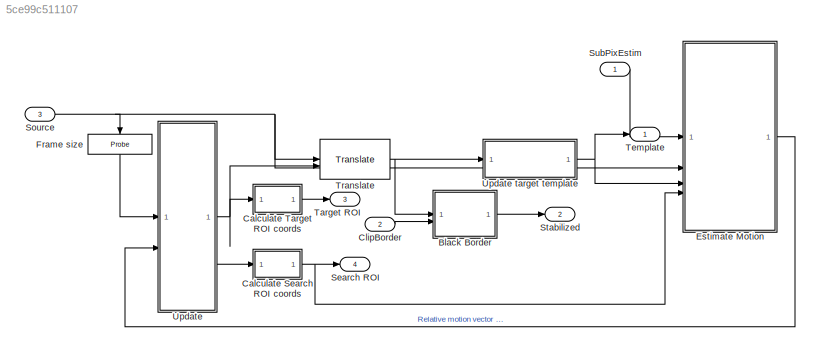
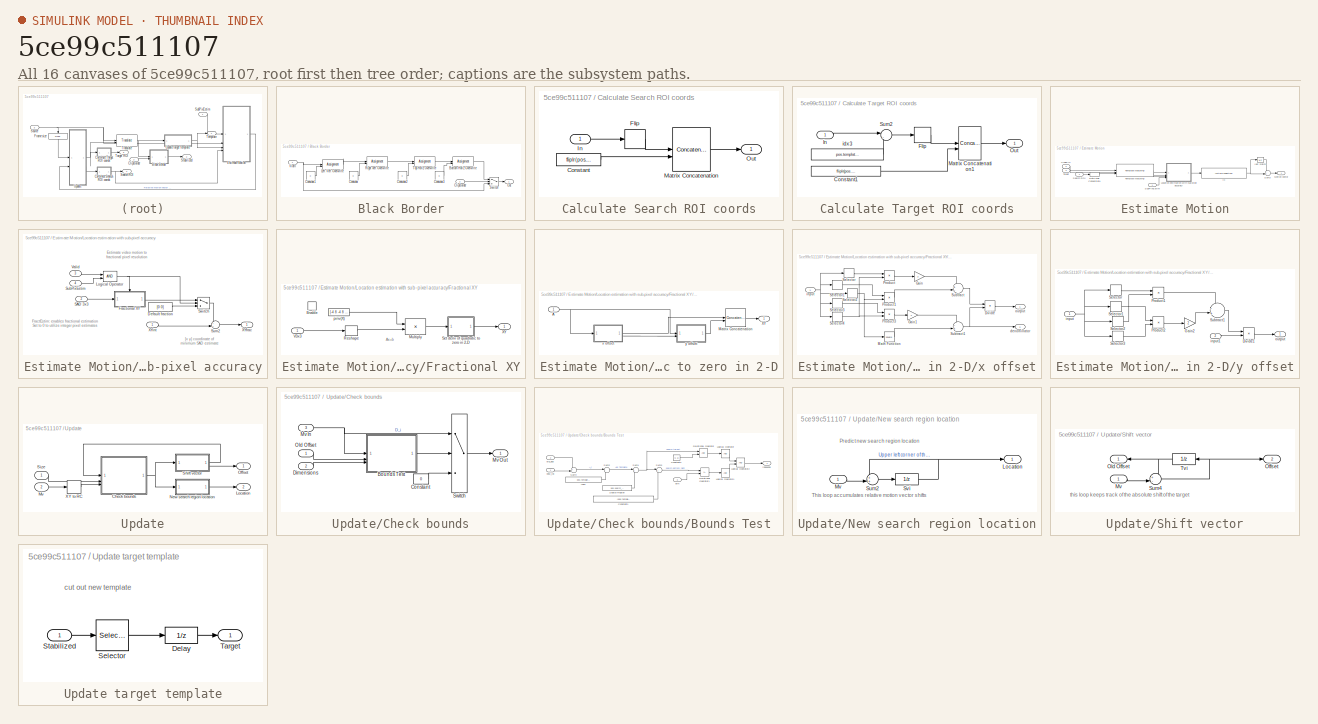
[diagram: thumbnail index - all 16 canvases of the model, root first then tree order]
MODEL slx_5ce99c511107
KIND model
CONFIG AbsTol = auto
CONFIG EnableMultiTasking = on
CONFIG FixedStep = auto
CONFIG MaxStep = auto
CONFIG MinStep = auto
CONFIG PreLoadFcn = template_orig = fliplr([109 100]);\ntemplate_size = fliplr([18 22]);\nsearch_border = fliplr([10 15]);\npos.template_orig = fliplr(template_orig);\npos.template_size = template_size;\npos.search_border = search_border;\npos.template_center = floor((template_size-1)/2);\npos.template_center_pos = pos.template_orig + ...\n    pos.template_center - 1;
CONFIG RelTol = 1e-3
CONFIG SampleTimeConstraint = Unconstrained
CONFIG SolverName = FixedStepDiscrete
CONFIG StartTime = 0.0
CONFIG StopTime = 10
BLOCK [SubSystem] Black Border
BLOCK [Assignment] Black Border/Bottom Horiz Overwrite
  IndexOptions = Index vector (dialog),Assign all
  Indices = [320-(pos.search_border(2)+4):320],[320-(pos.search_border(2)+4):320]
  NumberOfDimensions = 2
  OutputSizes = 1,1
BLOCK [Inport] Black Border/ClipBorder
  Port = 2
BLOCK [Constant] Black Border/Constant
  OutDataTypeStr = uint8
  Value = 0
BLOCK [Constant] Black Border/Constant1
  OutDataTypeStr = uint8
  Value = 0
BLOCK [Constant] Black Border/Constant2
  OutDataTypeStr = uint8
  Value = 0
BLOCK [Constant] Black Border/Constant3
  OutDataTypeStr = uint8
  Value = 0
BLOCK [Assignment] Black Border/Left Vert Overwrite
  IndexOptions = Assign all,Index vector (dialog)
  Indices = 1:end,1:(pos.search_border(2)+4)
  NumberOfDimensions = 2
  OutputSizes = 1,1
BLOCK [Outport] Black Border/Out
BLOCK [Assignment] Black Border/Right vert Overwrite
  IndexOptions = Assign all,Index vector (dialog)
  Indices = 1:end,[240-(pos.search_border(2)+4):240]
  NumberOfDimensions = 2
  OutputSizes = 1,1
BLOCK [Switch] Black Border/Switch
  Criteria = u2 ~= 0
  InputSameDT = off
  SaturateOnIntegerOverflow = off
  ZeroCross = off
BLOCK [Assignment] Black Border/Top Horiz Overwrite
  IndexOptions = Index vector (dialog),Assign all
  Indices = [1:pos.search_border(1)+4],[320-(pos.search_border(2)+4):320]
  NumberOfDimensions = 2
  OutputSizes = 1,1
BLOCK [Inport] Black Border/VidIn
BLOCK [SubSystem] Calculate Search ROI coords
BLOCK [Constant] Calculate Search ROI coords/Constant
  OutDataTypeStr = fixdt(1,16,6)
  Value = fliplr(pos.template_size + 2*pos.search_border)
  VectorParams1D = off
BLOCK [Selector] Calculate Search ROI coords/Flip
  IndexOptions = Index vector (dialog),Index vector (dialog)
  Indices = 1,[2 1]
  NumberOfDimensions = 2
  OutputSizes = 1,1
BLOCK [Inport] Calculate Search ROI coords/In
  NameLocation = top
BLOCK [Concatenate] Calculate Search ROI coords/Matrix Concatenation
  ConcatenateDimension = 2
  Mode = Multidimensional array
BLOCK [Outport] Calculate Search ROI coords/Out
BLOCK [SubSystem] Calculate Target ROI coords
BLOCK [Constant] Calculate Target ROI coords/Constant1
  OutDataTypeStr = Inherit: Inherit via back propagation
  Value = fliplr(pos.template_size )
  VectorParams1D = off
BLOCK [Selector] Calculate Target ROI coords/Flip
  IndexOptions = Index vector (dialog),Index vector (dialog)
  Indices = 1,[2 1]
  NumberOfDimensions = 2
  OutputSizes = 1,1
BLOCK [Inport] Calculate Target ROI coords/In
BLOCK [Concatenate] Calculate Target ROI coords/Matrix Concatenation1
  ConcatenateDimension = 2
  Mode = Multidimensional array
BLOCK [Outport] Calculate Target ROI coords/Out
BLOCK [Sum] Calculate Target ROI coords/Sum2
  Inputs = |-+
BLOCK [Constant] Calculate Target ROI coords/idx3
  OutDataTypeStr = fixdt(1,16,6)
  Value = pos.template_orig
  VectorParams1D = off
BLOCK [Inport] ClipBorder
  OutDataTypeStr = boolean
  Port = 2
  PortDimensions = [1 1]
  SampleTime = [0.033333299999999996,0]
  SamplingMode = Sample based
  SignalType = real
BLOCK [SubSystem] Estimate Motion
BLOCK [DataTypeConversion] Estimate Motion/Data Type Conversion1
  OutDataTypeStr = int32
  SaturateOnIntegerOverflow = off
BLOCK [InitialCondition] Estimate Motion/IC
  Value = fliplr(pos.template_center_pos)
BLOCK [SubSystem] Estimate Motion/Location estimation with sub-pixel accuracy
BLOCK [Constant] Estimate Motion/Location estimation with sub-pixel accuracy/Default fraction
  OutDataTypeStr = fixdt(1,8,6)
  Value = [0 0]
  VectorParams1D = off
BLOCK [SubSystem] Estimate Motion/Location estimation with sub-pixel accuracy/Fractional XY
  TreatAsAtomicUnit = on
BLOCK [EnablePort] Estimate Motion/Location estimation with sub-pixel accuracy/Fractional XY/Enable
  PropagateVarSize = During execution
  StatesWhenEnabling = reset
  ZeroCross = off
BLOCK [Product] Estimate Motion/Location estimation with sub-pixel accuracy/Fractional XY/Multiply
  Inputs = **
  Multiplication = Matrix(*)
  OutDataTypeStr = fixdt(1,16,-1)
BLOCK [Reshape] Estimate Motion/Location estimation with sub-pixel accuracy/Fractional XY/Reshape
  OutputDimensionality = Column vector (2-D)
BLOCK [SubSystem] Estimate Motion/Location estimation with sub-pixel accuracy/Fractional XY/Set deriv of quadratic to zero in 2-D
BLOCK [Inport] Estimate Motion/Location estimation with sub-pixel accuracy/Fractional XY/Set deriv of quadratic to zero in 2-D/A
BLOCK [Concatenate] Estimate Motion/Location estimation with sub-pixel accuracy/Fractional XY/Set deriv of quadratic to zero in 2-D/Matrix Concatenation
  ConcatenateDimension = 2
  Mode = Multidimensional array
BLOCK [Outport] Estimate Motion/Location estimation with sub-pixel accuracy/Fractional XY/Set deriv of quadratic to zero in 2-D/XY
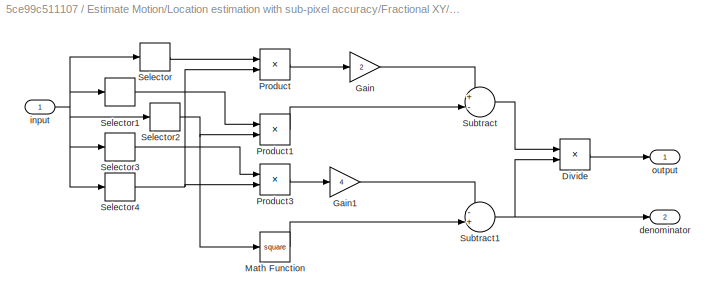
BLOCK [SubSystem] Estimate Motion/Location estimation with sub-pixel accuracy/Fractional XY/Set deriv of quadratic to zero in 2-D/x offset
BLOCK [Product] Estimate Motion/Location estimation with sub-pixel accuracy/Fractional XY/Set deriv of quadratic to zero in 2-D/x offset/Divide
  Inputs = */
  OutDataTypeStr = fixdt(1,8,6)
  SaturateOnIntegerOverflow = on
BLOCK [Gain] Estimate Motion/Location estimation with sub-pixel accuracy/Fractional XY/Set deriv of quadratic to zero in 2-D/x offset/Gain
  Gain = 2
  OutDataTypeStr = Inherit: Same as input
BLOCK [Gain] Estimate Motion/Location estimation with sub-pixel accuracy/Fractional XY/Set deriv of quadratic to zero in 2-D/x offset/Gain1
  Gain = 4
  OutDataTypeStr = Inherit: Same as input
BLOCK [Math] Estimate Motion/Location estimation with sub-pixel accuracy/Fractional XY/Set deriv of quadratic to zero in 2-D/x offset/Math Function
  Operator = square
  OutDataTypeStr = Inherit: Inherit via internal rule
  SignedPower = on
BLOCK [Product] Estimate Motion/Location estimation with sub-pixel accuracy/Fractional XY/Set deriv of quadratic to zero in 2-D/x offset/Product
  RndMeth = Zero
BLOCK [Product] Estimate Motion/Location estimation with sub-pixel accuracy/Fractional XY/Set deriv of quadratic to zero in 2-D/x offset/Product1
  RndMeth = Zero
BLOCK [Product] Estimate Motion/Location estimation with sub-pixel accuracy/Fractional XY/Set deriv of quadratic to zero in 2-D/x offset/Product3
  RndMeth = Zero
BLOCK [Selector] Estimate Motion/Location estimation with sub-pixel accuracy/Fractional XY/Set deriv of quadratic to zero in 2-D/x offset/Selector
  IndexMode = Zero-based
  IndexOptions = Index vector (dialog)
  Indices = (1)
  OutputSizes = 1
BLOCK [Selector] Estimate Motion/Location estimation with sub-pixel accuracy/Fractional XY/Set deriv of quadratic to zero in 2-D/x offset/Selector1
  IndexMode = Zero-based
  IndexOptions = Index vector (dialog)
  Indices = (2)
  OutputSizes = 1
BLOCK [Selector] Estimate Motion/Location estimation with sub-pixel accuracy/Fractional XY/Set deriv of quadratic to zero in 2-D/x offset/Selector2
  IndexMode = Zero-based
  IndexOptions = Index vector (dialog)
  Indices = (3)
  OutputSizes = 1
BLOCK [Selector] Estimate Motion/Location estimation with sub-pixel accuracy/Fractional XY/Set deriv of quadratic to zero in 2-D/x offset/Selector3
  IndexMode = Zero-based
  IndexOptions = Index vector (dialog)
  Indices = (4)
  OutputSizes = 1
BLOCK [Selector] Estimate Motion/Location estimation with sub-pixel accuracy/Fractional XY/Set deriv of quadratic to zero in 2-D/x offset/Selector4
  IndexMode = Zero-based
  IndexOptions = Index vector (dialog)
  Indices = (5)
  OutputSizes = 1
BLOCK [Sum] Estimate Motion/Location estimation with sub-pixel accuracy/Fractional XY/Set deriv of quadratic to zero in 2-D/x offset/Subtract
  Inputs = +-
  OutDataTypeStr = Inherit: Same as first input
BLOCK [Sum] Estimate Motion/Location estimation with sub-pixel accuracy/Fractional XY/Set deriv of quadratic to zero in 2-D/x offset/Subtract1
  Inputs = -+
  OutDataTypeStr = Inherit: Same as first input
BLOCK [Outport] Estimate Motion/Location estimation with sub-pixel accuracy/Fractional XY/Set deriv of quadratic to zero in 2-D/x offset/denominator
  Port = 2
BLOCK [Inport] Estimate Motion/Location estimation with sub-pixel accuracy/Fractional XY/Set deriv of quadratic to zero in 2-D/x offset/input
BLOCK [Outport] Estimate Motion/Location estimation with sub-pixel accuracy/Fractional XY/Set deriv of quadratic to zero in 2-D/x offset/output
BLOCK [SubSystem] Estimate Motion/Location estimation with sub-pixel accuracy/Fractional XY/Set deriv of quadratic to zero in 2-D/y offset
BLOCK [Product] Estimate Motion/Location estimation with sub-pixel accuracy/Fractional XY/Set deriv of quadratic to zero in 2-D/y offset/Divide1
  Inputs = */
  NameLocation = top
  OutDataTypeStr = fixdt(1,8,6)
  SaturateOnIntegerOverflow = on
BLOCK [Gain] Estimate Motion/Location estimation with sub-pixel accuracy/Fractional XY/Set deriv of quadratic to zero in 2-D/y offset/Gain2
  Gain = 2
  OutDataTypeStr = Inherit: Same as input
BLOCK [Product] Estimate Motion/Location estimation with sub-pixel accuracy/Fractional XY/Set deriv of quadratic to zero in 2-D/y offset/Product1
  RndMeth = Zero
BLOCK [Product] Estimate Motion/Location estimation with sub-pixel accuracy/Fractional XY/Set deriv of quadratic to zero in 2-D/y offset/Product2
  RndMeth = Zero
BLOCK [Selector] Estimate Motion/Location estimation with sub-pixel accuracy/Fractional XY/Set deriv of quadratic to zero in 2-D/y offset/Selector
  IndexMode = Zero-based
  IndexOptions = Index vector (dialog)
  Indices = (1)
  OutputSizes = 1
BLOCK [Selector] Estimate Motion/Location estimation with sub-pixel accuracy/Fractional XY/Set deriv of quadratic to zero in 2-D/y offset/Selector1
  IndexMode = Zero-based
  IndexOptions = Index vector (dialog)
  Indices = (2)
  OutputSizes = 1
BLOCK [Selector] Estimate Motion/Location estimation with sub-pixel accuracy/Fractional XY/Set deriv of quadratic to zero in 2-D/y offset/Selector2
  IndexMode = Zero-based
  IndexOptions = Index vector (dialog)
  Indices = (3)
  OutputSizes = 1
BLOCK [Selector] Estimate Motion/Location estimation with sub-pixel accuracy/Fractional XY/Set deriv of quadratic to zero in 2-D/y offset/Selector3
  IndexMode = Zero-based
  IndexOptions = Index vector (dialog)
  Indices = (4)
  OutputSizes = 1
BLOCK [Sum] Estimate Motion/Location estimation with sub-pixel accuracy/Fractional XY/Set deriv of quadratic to zero in 2-D/y offset/Subtract1
  Inputs = -+
BLOCK [Inport] Estimate Motion/Location estimation with sub-pixel accuracy/Fractional XY/Set deriv of quadratic to zero in 2-D/y offset/input
BLOCK [Inport] Estimate Motion/Location estimation with sub-pixel accuracy/Fractional XY/Set deriv of quadratic to zero in 2-D/y offset/input1
  Port = 2
BLOCK [Outport] Estimate Motion/Location estimation with sub-pixel accuracy/Fractional XY/Set deriv of quadratic to zero in 2-D/y offset/output
BLOCK [Inport] Estimate Motion/Location estimation with sub-pixel accuracy/Fractional XY/V3x3
BLOCK [Outport] Estimate Motion/Location estimation with sub-pixel accuracy/Fractional XY/XY
  NameLocation = top
BLOCK [Constant] Estimate Motion/Location estimation with sub-pixel accuracy/Fractional XY/pinv(X)
  NameLocation = top
  OutDataTypeStr = fixdt(1,16)
  Value = [-4 8 -4 8 20 8 -4 8 -4;-6 -6 -6 0 0 0 6 6 6;-6 0 6 -6 0 6 -6 0 6;9 0 -9 0 0 0 -9 0 9;6 6 6 -12 -12 -12 6 6 6;6 -12 6 6 -12 6 6 -12 6]/36
  VectorParams1D = off
BLOCK [Logic] Estimate Motion/Location estimation with sub-pixel accuracy/Logical Operator
  AllPortsSameDT = off
  OutDataTypeStr = boolean
BLOCK [Inport] Estimate Motion/Location estimation with sub-pixel accuracy/SAD 3x3
  Port = 2
BLOCK [Inport] Estimate Motion/Location estimation with sub-pixel accuracy/SubPixEstim
  Port = 4
BLOCK [Sum] Estimate Motion/Location estimation with sub-pixel accuracy/Sum2
  Inputs = ++|
  OutDataTypeStr = fixdt(1,16,6)
BLOCK [Switch] Estimate Motion/Location estimation with sub-pixel accuracy/Switch
  Criteria = u2 ~= 0
  InputSameDT = off
  SaturateOnIntegerOverflow = off
BLOCK [Inport] Estimate Motion/Location estimation with sub-pixel accuracy/Valid
  NameLocation = top
  Port = 3
BLOCK [Outport] Estimate Motion/Location estimation with sub-pixel accuracy/XYfrac
BLOCK [Inport] Estimate Motion/Location estimation with sub-pixel accuracy/XYint
BLOCK [Outport] Estimate Motion/Motion vector
BLOCK [Inport] Estimate Motion/Search ROI
  Port = 4
BLOCK [Inport] Estimate Motion/SubPixEstim
BLOCK [Sum] Estimate Motion/Sum3
  Inputs = -+|
  OutDataTypeStr = fixdt(1,16,6)
BLOCK [Inport] Estimate Motion/Target
  Port = 3
BLOCK [Reference] Estimate Motion/Template Matching  REF=visionanalysis/Template Matching
  SourceBlock = visionanalysis/Template Matching
  SourceType = Template Matching
BLOCK [Inport] Estimate Motion/Video In
  NameLocation = top
  Port = 2
BLOCK [UnitDelay] Estimate Motion/last match
  HasFrameUpgradeWarning = on
  InitialCondition = fliplr(pos.template_center_pos)
  NameLocation = top
  SampleTime = -1
BLOCK [Probe] Frame size
  NameLocation = left
  ProbeComplexSignal = off
  ProbeDimensionsDataType = int16
  ProbeSampleTime = off
  ProbeSignalDimensions = on
  ProbeWidth = off
BLOCK [Outport] Search ROI
  OutDataTypeStr = fixdt('sfix16_En6')
  Port = 4
  PortDimensions = [1 4]
  SampleTime = [0.033333299999999996,0]
  SamplingMode = Sample based
  SignalType = real
BLOCK [Inport] Source
  OutDataTypeStr = uint8
  Port = 3
  PortDimensions = [320 240]
  SampleTime = [0.033333299999999996,0]
  SamplingMode = Sample based
  SignalType = real
BLOCK [Outport] Stabilized
  OutDataTypeStr = uint8
  Port = 2
  PortDimensions = [320 240]
  SampleTime = [0.033333299999999996,0]
  SamplingMode = Sample based
  SignalType = real
BLOCK [Inport] SubPixEstim
  OutDataTypeStr = boolean
  PortDimensions = [1 1]
  SampleTime = [0.033333299999999996,0]
  SamplingMode = Sample based
  SignalType = real
BLOCK [Outport] Target ROI
  OutDataTypeStr = fixdt('sfix16_En6')
  Port = 3
  PortDimensions = [1 4]
  SampleTime = [0.033333299999999996,0]
  SamplingMode = Sample based
  SignalType = real
BLOCK [Outport] Template
  OutDataTypeStr = uint8
  PortDimensions = [22 18]
  SampleTime = [0.033333299999999996,0]
  SamplingMode = Sample based
  SignalType = real
BLOCK [Reference] Translate  REF=visiongeotforms/Translate
  NameLocation = top
  SourceBlock = visiongeotforms/Translate
  SourceType = Translate
BLOCK [SubSystem] Update
BLOCK [SubSystem] Update target template
BLOCK [UnitDelay] Update target template/Delay
  HasFrameUpgradeWarning = on
  SampleTime = -1
BLOCK [Selector] Update target template/Selector
  IndexOptions = Index vector (dialog),Index vector (dialog)
  Indices = pos.template_orig(1)-1 : pos.template_orig(1)+pos.template_size(1)-2,pos.template_orig(2)-1 : pos.template_orig(2)+pos.template_size(2)-2
  InputPortWidth = 3
  NumberOfDimensions = 2
  OutputSizes = 1,1
BLOCK [Inport] Update target template/Stabilized
BLOCK [Outport] Update target template/Target
BLOCK [SubSystem] Update/Check bounds
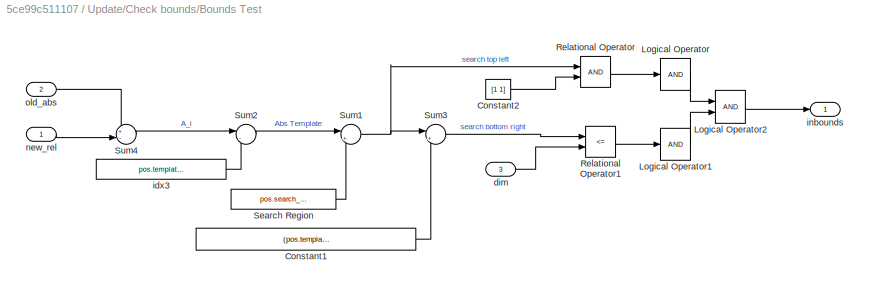
BLOCK [SubSystem] Update/Check bounds/Bounds Test
BLOCK [Constant] Update/Check bounds/Bounds Test/Constant1
  OutDataTypeStr = int16
  Value = (pos.template_size + 2*pos.search_border)'
BLOCK [Constant] Update/Check bounds/Bounds Test/Constant2
  OutDataTypeStr = int16
  Value = [1 1]
BLOCK [Logic] Update/Check bounds/Bounds Test/Logical Operator
  AllPortsSameDT = off
  Inputs = 1
  OutDataTypeStr = boolean
BLOCK [Logic] Update/Check bounds/Bounds Test/Logical Operator1
  AllPortsSameDT = off
  Inputs = 1
  OutDataTypeStr = boolean
BLOCK [Logic] Update/Check bounds/Bounds Test/Logical Operator2
  AllPortsSameDT = off
  OutDataTypeStr = boolean
BLOCK [RelationalOperator] Update/Check bounds/Bounds Test/Relational Operator
  InputSameDT = off
  OutDataTypeStr = boolean
BLOCK [RelationalOperator] Update/Check bounds/Bounds Test/Relational Operator1
  InputSameDT = off
  Operator = <=
  OutDataTypeStr = boolean
BLOCK [Constant] Update/Check bounds/Bounds Test/Search Region
  OutDataTypeStr = int16
  Value = pos.search_border
BLOCK [Sum] Update/Check bounds/Bounds Test/Sum1
  Inputs = |+-
  OutDataTypeStr = Inherit: Same as first input
BLOCK [Sum] Update/Check bounds/Bounds Test/Sum2
  Inputs = |-+
  OutDataTypeStr = int16
BLOCK [Sum] Update/Check bounds/Bounds Test/Sum3
  Inputs = |++
  OutDataTypeStr = Inherit: Same as first input
BLOCK [Sum] Update/Check bounds/Bounds Test/Sum4
  Inputs = +-|
  NameLocation = top
BLOCK [Inport] Update/Check bounds/Bounds Test/dim
  Port = 3
BLOCK [Constant] Update/Check bounds/Bounds Test/idx3
  OutDataTypeStr = int16
  Value = pos.template_orig
BLOCK [Outport] Update/Check bounds/Bounds Test/inbounds
BLOCK [Inport] Update/Check bounds/Bounds Test/new_rel
BLOCK [Inport] Update/Check bounds/Bounds Test/old_abs
  Port = 2
BLOCK [Constant] Update/Check bounds/Constant
  OutDataTypeStr = fixdt(1,16,6)
  Value = 0
BLOCK [Inport] Update/Check bounds/Dimensions
  Port = 2
BLOCK [Inport] Update/Check bounds/Mv In
  Port = 3
BLOCK [Outport] Update/Check bounds/Mv Out
BLOCK [Inport] Update/Check bounds/Old Offset
  NameLocation = top
BLOCK [Switch] Update/Check bounds/Switch
  Criteria = u2 ~= 0
  InputSameDT = off
  SaturateOnIntegerOverflow = off
  ZeroCross = off
BLOCK [Outport] Update/Location
  Port = 2
BLOCK [Inport] Update/Mv
  Port = 2
BLOCK [SubSystem] Update/New search region location
BLOCK [Outport] Update/New search region location/Location
BLOCK [Inport] Update/New search region location/Mv
BLOCK [Sum] Update/New search region location/Sum2
  Inputs = ++|
  LockScale = on
  NameLocation = top
  RndMeth = Nearest
BLOCK [UnitDelay] Update/New search region location/Svi
  HasFrameUpgradeWarning = on
  InitialCondition = pos.template_orig - pos.search_border - 1
  NameLocation = top
  SampleTime = -1
BLOCK [Outport] Update/Offset
BLOCK [SubSystem] Update/Shift vector
  NameLocation = top
BLOCK [Inport] Update/Shift vector/Mv
BLOCK [Outport] Update/Shift vector/Offset
  Port = 2
BLOCK [Outport] Update/Shift vector/Old Offset
  NameLocation = top
BLOCK [Sum] Update/Shift vector/Sum4
  Inputs = +-|
  NameLocation = top
  OutDataTypeStr = fixdt(1,16,6)
BLOCK [UnitDelay] Update/Shift vector/Tvi
  HasFrameUpgradeWarning = on
  SampleTime = -1
BLOCK [Inport] Update/Size
  NameLocation = top
BLOCK [Selector] Update/XY to RC
  IndexOptions = Index vector (dialog),Index vector (dialog)
  Indices = 1,[2 1]
  NumberOfDimensions = 2
  OutputSizes = 1,1
ANNOTATION Estimate Motion/Location estimation with sub-pixel accuracy: Estimate video motion to fractional pixel resolution
ANNOTATION Estimate Motion/Location estimation with sub-pixel accuracy: FractEstim: enables fractional estimation Set to 0 to utilize integer pixel estimates
ANNOTATION Estimate Motion/Location estimation with sub-pixel accuracy: [x y] coordinate of minimum SAD estimate
ANNOTATION Estimate Motion/Location estimation with sub-pixel accuracy/Fractional XY: Ax=b
ANNOTATION Update target template: cut out new template
ANNOTATION Update/New search region location: Predict new search region location
ANNOTATION Update/New search region location: This loop accumulates relative motion vector shifts
ANNOTATION Update/Shift vector: this loop keeps track of the absolute shift of the target
LINE Black Border/Bottom Horiz Overwrite:1 -> Black Border/Switch:1
LINE Black Border/ClipBorder:1 -> Black Border/Switch:2
LINE Black Border/Constant1:1 -> Black Border/Left Vert Overwrite:2
LINE Black Border/Constant2:1 -> Black Border/Top Horiz Overwrite:2
LINE Black Border/Constant3:1 -> Black Border/Bottom Horiz Overwrite:2
LINE Black Border/Constant:1 -> Black Border/Right vert Overwrite:2
LINE Black Border/Left Vert Overwrite:1 -> Black Border/Right vert Overwrite:1
LINE Black Border/Right vert Overwrite:1 -> Black Border/Top Horiz Overwrite:1
LINE Black Border/Switch:1 -> Black Border/Out:1
LINE Black Border/Top Horiz Overwrite:1 -> Black Border/Bottom Horiz Overwrite:1
NET Black Border/VidIn:1 -> Black Border/Left Vert Overwrite:1, Black Border/Switch:3
LINE Black Border:1 -> Stabilized:1
LINE Calculate Search ROI coords/Constant:1 -> Calculate Search ROI coords/Matrix Concatenation:2
LINE Calculate Search ROI coords/Flip:1 -> Calculate Search ROI coords/Matrix Concatenation:1
LINE Calculate Search ROI coords/In:1 -> Calculate Search ROI coords/Flip:1
LINE Calculate Search ROI coords/Matrix Concatenation:1 -> Calculate Search ROI coords/Out:1
NET Calculate Search ROI coords:1 -> Estimate Motion:4, Search ROI:1
LINE Calculate Target ROI coords/Constant1:1 -> Calculate Target ROI coords/Matrix Concatenation1:2
LINE Calculate Target ROI coords/Flip:1 -> Calculate Target ROI coords/Matrix Concatenation1:1
LINE Calculate Target ROI coords/In:1 -> Calculate Target ROI coords/Sum2:1
LINE Calculate Target ROI coords/Matrix Concatenation1:1 -> Calculate Target ROI coords/Out:1
LINE Calculate Target ROI coords/Sum2:1 -> Calculate Target ROI coords/Flip:1
LINE Calculate Target ROI coords/idx3:1 -> Calculate Target ROI coords/Sum2:2
LINE Calculate Target ROI coords:1 -> Target ROI:1
LINE ClipBorder:1 -> Black Border:2
LINE Estimate Motion/Data Type Conversion1:1 -> Estimate Motion/Template Matching:3
NET Estimate Motion/IC:1 -> Estimate Motion/Sum3:2, Estimate Motion/last match:1
LINE Estimate Motion/Location estimation with sub-pixel accuracy/Default fraction:1 -> Estimate Motion/Location estimation with sub-pixel accuracy/Switch:3
LINE Estimate Motion/Location estimation with sub-pixel accuracy/Fractional XY/Multiply:1 -> Estimate Motion/Location estimation with sub-pixel accuracy/Fractional XY/Set deriv of quadratic to zero in 2-D:1
LINE Estimate Motion/Location estimation with sub-pixel accuracy/Fractional XY/Reshape:1 -> Estimate Motion/Location estimation with sub-pixel accuracy/Fractional XY/Multiply:2
NET Estimate Motion/Location estimation with sub-pixel accuracy/Fractional XY/Set deriv of quadratic to zero in 2-D/A:1 -> Estimate Motion/Location estimation with sub-pixel accuracy/Fractional XY/Set deriv of quadratic to zero in 2-D/x offset:1, Estimate Motion/Location estimation with sub-pixel accuracy/Fractional XY/Set deriv of quadratic to zero in 2-D/y offset:1
LINE Estimate Motion/Location estimation with sub-pixel accuracy/Fractional XY/Set deriv of quadratic to zero in 2-D/Matrix Concatenation:1 -> Estimate Motion/Location estimation with sub-pixel accuracy/Fractional XY/Set deriv of quadratic to zero in 2-D/XY:1
LINE Estimate Motion/Location estimation with sub-pixel accuracy/Fractional XY/Set deriv of quadratic to zero in 2-D/x offset/Divide:1 -> Estimate Motion/Location estimation with sub-pixel accuracy/Fractional XY/Set deriv of quadratic to zero in 2-D/x offset/output:1
LINE Estimate Motion/Location estimation with sub-pixel accuracy/Fractional XY/Set deriv of quadratic to zero in 2-D/x offset/Gain1:1 -> Estimate Motion/Location estimation with sub-pixel accuracy/Fractional XY/Set deriv of quadratic to zero in 2-D/x offset/Subtract1:1
LINE Estimate Motion/Location estimation with sub-pixel accuracy/Fractional XY/Set deriv of quadratic to zero in 2-D/x offset/Gain:1 -> Estimate Motion/Location estimation with sub-pixel accuracy/Fractional XY/Set deriv of quadratic to zero in 2-D/x offset/Subtract:1
LINE Estimate Motion/Location estimation with sub-pixel accuracy/Fractional XY/Set deriv of quadratic to zero in 2-D/x offset/Math Function:1 -> Estimate Motion/Location estimation with sub-pixel accuracy/Fractional XY/Set deriv of quadratic to zero in 2-D/x offset/Subtract1:2
LINE Estimate Motion/Location estimation with sub-pixel accuracy/Fractional XY/Set deriv of quadratic to zero in 2-D/x offset/Product1:1 -> Estimate Motion/Location estimation with sub-pixel accuracy/Fractional XY/Set deriv of quadratic to zero in 2-D/x offset/Subtract:2
LINE Estimate Motion/Location estimation with sub-pixel accuracy/Fractional XY/Set deriv of quadratic to zero in 2-D/x offset/Product3:1 -> Estimate Motion/Location estimation with sub-pixel accuracy/Fractional XY/Set deriv of quadratic to zero in 2-D/x offset/Gain1:1
LINE Estimate Motion/Location estimation with sub-pixel accuracy/Fractional XY/Set deriv of quadratic to zero in 2-D/x offset/Product:1 -> Estimate Motion/Location estimation with sub-pixel accuracy/Fractional XY/Set deriv of quadratic to zero in 2-D/x offset/Gain:1
LINE Estimate Motion/Location estimation with sub-pixel accuracy/Fractional XY/Set deriv of quadratic to zero in 2-D/x offset/Selector1:1 -> Estimate Motion/Location estimation with sub-pixel accuracy/Fractional XY/Set deriv of quadratic to zero in 2-D/x offset/Product1:1
NET Estimate Motion/Location estimation with sub-pixel accuracy/Fractional XY/Set deriv of quadratic to zero in 2-D/x offset/Selector2:1 -> Estimate Motion/Location estimation with sub-pixel accuracy/Fractional XY/Set deriv of quadratic to zero in 2-D/x offset/Math Function:1, Estimate Motion/Location estimation with sub-pixel accuracy/Fractional XY/Set deriv of quadratic to zero in 2-D/x offset/Product1:2
LINE Estimate Motion/Location estimation with sub-pixel accuracy/Fractional XY/Set deriv of quadratic to zero in 2-D/x offset/Selector3:1 -> Estimate Motion/Location estimation with sub-pixel accuracy/Fractional XY/Set deriv of quadratic to zero in 2-D/x offset/Product3:1
NET Estimate Motion/Location estimation with sub-pixel accuracy/Fractional XY/Set deriv of quadratic to zero in 2-D/x offset/Selector4:1 -> Estimate Motion/Location estimation with sub-pixel accuracy/Fractional XY/Set deriv of quadratic to zero in 2-D/x offset/Product3:2, Estimate Motion/Location estimation with sub-pixel accuracy/Fractional XY/Set deriv of quadratic to zero in 2-D/x offset/Product:2
LINE Estimate Motion/Location estimation with sub-pixel accuracy/Fractional XY/Set deriv of quadratic to zero in 2-D/x offset/Selector:1 -> Estimate Motion/Location estimation with sub-pixel accuracy/Fractional XY/Set deriv of quadratic to zero in 2-D/x offset/Product:1
NET Estimate Motion/Location estimation with sub-pixel accuracy/Fractional XY/Set deriv of quadratic to zero in 2-D/x offset/Subtract1:1 -> Estimate Motion/Location estimation with sub-pixel accuracy/Fractional XY/Set deriv of quadratic to zero in 2-D/x offset/Divide:2, Estimate Motion/Location estimation with sub-pixel accuracy/Fractional XY/Set deriv of quadratic to zero in 2-D/x offset/denominator:1
LINE Estimate Motion/Location estimation with sub-pixel accuracy/Fractional XY/Set deriv of quadratic to zero in 2-D/x offset/Subtract:1 -> Estimate Motion/Location estimation with sub-pixel accuracy/Fractional XY/Set deriv of quadratic to zero in 2-D/x offset/Divide:1
NET Estimate Motion/Location estimation with sub-pixel accuracy/Fractional XY/Set deriv of quadratic to zero in 2-D/x offset/input:1 -> Estimate Motion/Location estimation with sub-pixel accuracy/Fractional XY/Set deriv of quadratic to zero in 2-D/x offset/Selector1:1, Estimate Motion/Location estimation with sub-pixel accuracy/Fractional XY/Set deriv of quadratic to zero in 2-D/x offset/Selector2:1, Estimate Motion/Location estimation with sub-pixel accuracy/Fractional XY/Set deriv of quadratic to zero in 2-D/x offset/Selector3:1, Estimate Motion/Location estimation with sub-pixel accuracy/Fractional XY/Set deriv of quadratic to zero in 2-D/x offset/Selector4:1, Estimate Motion/Location estimation with sub-pixel accuracy/Fractional XY/Set deriv of quadratic to zero in 2-D/x offset/Selector:1
LINE Estimate Motion/Location estimation with sub-pixel accuracy/Fractional XY/Set deriv of quadratic to zero in 2-D/x offset:1 -> Estimate Motion/Location estimation with sub-pixel accuracy/Fractional XY/Set deriv of quadratic to zero in 2-D/Matrix Concatenation:1
LINE Estimate Motion/Location estimation with sub-pixel accuracy/Fractional XY/Set deriv of quadratic to zero in 2-D/x offset:2 -> Estimate Motion/Location estimation with sub-pixel accuracy/Fractional XY/Set deriv of quadratic to zero in 2-D/y offset:2
LINE Estimate Motion/Location estimation with sub-pixel accuracy/Fractional XY/Set deriv of quadratic to zero in 2-D/y offset/Divide1:1 -> Estimate Motion/Location estimation with sub-pixel accuracy/Fractional XY/Set deriv of quadratic to zero in 2-D/y offset/output:1
LINE Estimate Motion/Location estimation with sub-pixel accuracy/Fractional XY/Set deriv of quadratic to zero in 2-D/y offset/Gain2:1 -> Estimate Motion/Location estimation with sub-pixel accuracy/Fractional XY/Set deriv of quadratic to zero in 2-D/y offset/Subtract1:2
LINE Estimate Motion/Location estimation with sub-pixel accuracy/Fractional XY/Set deriv of quadratic to zero in 2-D/y offset/Product1:1 -> Estimate Motion/Location estimation with sub-pixel accuracy/Fractional XY/Set deriv of quadratic to zero in 2-D/y offset/Subtract1:1
LINE Estimate Motion/Location estimation with sub-pixel accuracy/Fractional XY/Set deriv of quadratic to zero in 2-D/y offset/Product2:1 -> Estimate Motion/Location estimation with sub-pixel accuracy/Fractional XY/Set deriv of quadratic to zero in 2-D/y offset/Gain2:1
LINE Estimate Motion/Location estimation with sub-pixel accuracy/Fractional XY/Set deriv of quadratic to zero in 2-D/y offset/Selector1:1 -> Estimate Motion/Location estimation with sub-pixel accuracy/Fractional XY/Set deriv of quadratic to zero in 2-D/y offset/Product2:1
LINE Estimate Motion/Location estimation with sub-pixel accuracy/Fractional XY/Set deriv of quadratic to zero in 2-D/y offset/Selector2:1 -> Estimate Motion/Location estimation with sub-pixel accuracy/Fractional XY/Set deriv of quadratic to zero in 2-D/y offset/Product1:2
LINE Estimate Motion/Location estimation with sub-pixel accuracy/Fractional XY/Set deriv of quadratic to zero in 2-D/y offset/Selector3:1 -> Estimate Motion/Location estimation with sub-pixel accuracy/Fractional XY/Set deriv of quadratic to zero in 2-D/y offset/Product2:2
LINE Estimate Motion/Location estimation with sub-pixel accuracy/Fractional XY/Set deriv of quadratic to zero in 2-D/y offset/Selector:1 -> Estimate Motion/Location estimation with sub-pixel accuracy/Fractional XY/Set deriv of quadratic to zero in 2-D/y offset/Product1:1
LINE Estimate Motion/Location estimation with sub-pixel accuracy/Fractional XY/Set deriv of quadratic to zero in 2-D/y offset/Subtract1:1 -> Estimate Motion/Location estimation with sub-pixel accuracy/Fractional XY/Set deriv of quadratic to zero in 2-D/y offset/Divide1:1
LINE Estimate Motion/Location estimation with sub-pixel accuracy/Fractional XY/Set deriv of quadratic to zero in 2-D/y offset/input1:1 -> Estimate Motion/Location estimation with sub-pixel accuracy/Fractional XY/Set deriv of quadratic to zero in 2-D/y offset/Divide1:2
NET Estimate Motion/Location estimation with sub-pixel accuracy/Fractional XY/Set deriv of quadratic to zero in 2-D/y offset/input:1 -> Estimate Motion/Location estimation with sub-pixel accuracy/Fractional XY/Set deriv of quadratic to zero in 2-D/y offset/Selector1:1, Estimate Motion/Location estimation with sub-pixel accuracy/Fractional XY/Set deriv of quadratic to zero in 2-D/y offset/Selector2:1, Estimate Motion/Location estimation with sub-pixel accuracy/Fractional XY/Set deriv of quadratic to zero in 2-D/y offset/Selector3:1, Estimate Motion/Location estimation with sub-pixel accuracy/Fractional XY/Set deriv of quadratic to zero in 2-D/y offset/Selector:1
LINE Estimate Motion/Location estimation with sub-pixel accuracy/Fractional XY/Set deriv of quadratic to zero in 2-D/y offset:1 -> Estimate Motion/Location estimation with sub-pixel accuracy/Fractional XY/Set deriv of quadratic to zero in 2-D/Matrix Concatenation:2
LINE Estimate Motion/Location estimation with sub-pixel accuracy/Fractional XY/Set deriv of quadratic to zero in 2-D:1 -> Estimate Motion/Location estimation with sub-pixel accuracy/Fractional XY/XY:1
LINE Estimate Motion/Location estimation with sub-pixel accuracy/Fractional XY/V3x3:1 -> Estimate Motion/Location estimation with sub-pixel accuracy/Fractional XY/Reshape:1
LINE Estimate Motion/Location estimation with sub-pixel accuracy/Fractional XY/pinv(X):1 -> Estimate Motion/Location estimation with sub-pixel accuracy/Fractional XY/Multiply:1
LINE Estimate Motion/Location estimation with sub-pixel accuracy/Fractional XY:1 -> Estimate Motion/Location estimation with sub-pixel accuracy/Switch:1
NET Estimate Motion/Location estimation with sub-pixel accuracy/Logical Operator:1 -> Estimate Motion/Location estimation with sub-pixel accuracy/Fractional XY:enable, Estimate Motion/Location estimation with sub-pixel accuracy/Switch:2
LINE Estimate Motion/Location estimation with sub-pixel accuracy/SAD 3x3:1 -> Estimate Motion/Location estimation with sub-pixel accuracy/Fractional XY:1
LINE Estimate Motion/Location estimation with sub-pixel accuracy/SubPixEstim:1 -> Estimate Motion/Location estimation with sub-pixel accuracy/Logical Operator:2
LINE Estimate Motion/Location estimation with sub-pixel accuracy/Sum2:1 -> Estimate Motion/Location estimation with sub-pixel accuracy/XYfrac:1
LINE Estimate Motion/Location estimation with sub-pixel accuracy/Switch:1 -> Estimate Motion/Location estimation with sub-pixel accuracy/Sum2:1
LINE Estimate Motion/Location estimation with sub-pixel accuracy/Valid:1 -> Estimate Motion/Location estimation with sub-pixel accuracy/Logical Operator:1
LINE Estimate Motion/Location estimation with sub-pixel accuracy/XYint:1 -> Estimate Motion/Location estimation with sub-pixel accuracy/Sum2:2
LINE Estimate Motion/Location estimation with sub-pixel accuracy:1 -> Estimate Motion/IC:1
LINE Estimate Motion/Search ROI:1 -> Estimate Motion/Data Type Conversion1:1
LINE Estimate Motion/SubPixEstim:1 -> Estimate Motion/Location estimation with sub-pixel accuracy:4
LINE Estimate Motion/Sum3:1 -> Estimate Motion/Motion vector:1
LINE Estimate Motion/Target:1 -> Estimate Motion/Template Matching:2
LINE Estimate Motion/Template Matching:1 -> Estimate Motion/Location estimation with sub-pixel accuracy:1
LINE Estimate Motion/Template Matching:2 -> Estimate Motion/Location estimation with sub-pixel accuracy:2
LINE Estimate Motion/Template Matching:3 -> Estimate Motion/Location estimation with sub-pixel accuracy:3
LINE Estimate Motion/Video In:1 -> Estimate Motion/Template Matching:1
LINE Estimate Motion/last match:1 -> Estimate Motion/Sum3:1
LINE Estimate Motion:1 -> Update:2
LINE Frame size:1 -> Update:1
NET Source:1 -> Estimate Motion:2, Frame size:1, Translate:1
LINE SubPixEstim:1 -> Estimate Motion:1
NET Translate:1 -> Black Border:1, Update target template:1
LINE Update target template/Delay:1 -> Update target template/Target:1
LINE Update target template/Selector:1 -> Update target template/Delay:1
LINE Update target template/Stabilized:1 -> Update target template/Selector:1
NET Update target template:1 -> Estimate Motion:3, Template:1
LINE Update/Check bounds/Bounds Test/Constant1:1 -> Update/Check bounds/Bounds Test/Sum3:2
LINE Update/Check bounds/Bounds Test/Constant2:1 -> Update/Check bounds/Bounds Test/Relational Operator:2
LINE Update/Check bounds/Bounds Test/Logical Operator1:1 -> Update/Check bounds/Bounds Test/Logical Operator2:2
LINE Update/Check bounds/Bounds Test/Logical Operator2:1 -> Update/Check bounds/Bounds Test/inbounds:1
LINE Update/Check bounds/Bounds Test/Logical Operator:1 -> Update/Check bounds/Bounds Test/Logical Operator2:1
LINE Update/Check bounds/Bounds Test/Relational Operator1:1 -> Update/Check bounds/Bounds Test/Logical Operator1:1
LINE Update/Check bounds/Bounds Test/Relational Operator:1 -> Update/Check bounds/Bounds Test/Logical Operator:1
LINE Update/Check bounds/Bounds Test/Search Region:1 -> Update/Check bounds/Bounds Test/Sum1:2
NET Update/Check bounds/Bounds Test/Sum1:1 -> Update/Check bounds/Bounds Test/Relational Operator:1, Update/Check bounds/Bounds Test/Sum3:1
LINE Update/Check bounds/Bounds Test/Sum2:1 -> Update/Check bounds/Bounds Test/Sum1:1
LINE Update/Check bounds/Bounds Test/Sum3:1 -> Update/Check bounds/Bounds Test/Relational Operator1:1
LINE Update/Check bounds/Bounds Test/Sum4:1 -> Update/Check bounds/Bounds Test/Sum2:1
LINE Update/Check bounds/Bounds Test/dim:1 -> Update/Check bounds/Bounds Test/Relational Operator1:2
LINE Update/Check bounds/Bounds Test/idx3:1 -> Update/Check bounds/Bounds Test/Sum2:2
LINE Update/Check bounds/Bounds Test/new_rel:1 -> Update/Check bounds/Bounds Test/Sum4:2
LINE Update/Check bounds/Bounds Test/old_abs:1 -> Update/Check bounds/Bounds Test/Sum4:1
LINE Update/Check bounds/Bounds Test:1 -> Update/Check bounds/Switch:2
LINE Update/Check bounds/Constant:1 -> Update/Check bounds/Switch:3
LINE Update/Check bounds/Dimensions:1 -> Update/Check bounds/Bounds Test:3
NET Update/Check bounds/Mv In:1 -> Update/Check bounds/Bounds Test:1, Update/Check bounds/Switch:1
LINE Update/Check bounds/Old Offset:1 -> Update/Check bounds/Bounds Test:2
LINE Update/Check bounds/Switch:1 -> Update/Check bounds/Mv Out:1
NET Update/Check bounds:1 -> Update/New search region location:1, Update/Shift vector:1
LINE Update/Mv:1 -> Update/XY to RC:1
LINE Update/New search region location/Mv:1 -> Update/New search region location/Sum2:2
LINE Update/New search region location/Sum2:1 -> Update/New search region location/Svi:1
NET Update/New search region location/Svi:1 -> Update/New search region location/Location:1, Update/New search region location/Sum2:1
LINE Update/New search region location:1 -> Update/Location:1
LINE Update/Shift vector/Mv:1 -> Update/Shift vector/Sum4:2
NET Update/Shift vector/Sum4:1 -> Update/Shift vector/Offset:1, Update/Shift vector/Tvi:1
NET Update/Shift vector/Tvi:1 -> Update/Shift vector/Old Offset:1, Update/Shift vector/Sum4:1
LINE Update/Shift vector:1 -> Update/Check bounds:1
LINE Update/Shift vector:2 -> Update/Offset:1
LINE Update/Size:1 -> Update/Check bounds:2
LINE Update/XY to RC:1 -> Update/Check bounds:3
NET Update:1 -> Calculate Target ROI coords:1, Translate:2
LINE Update:2 -> Calculate Search ROI coords:1
note: NET lines group one-source signal fan-out (src -> all destinations, sorted); 1:1 wires keep LINE
